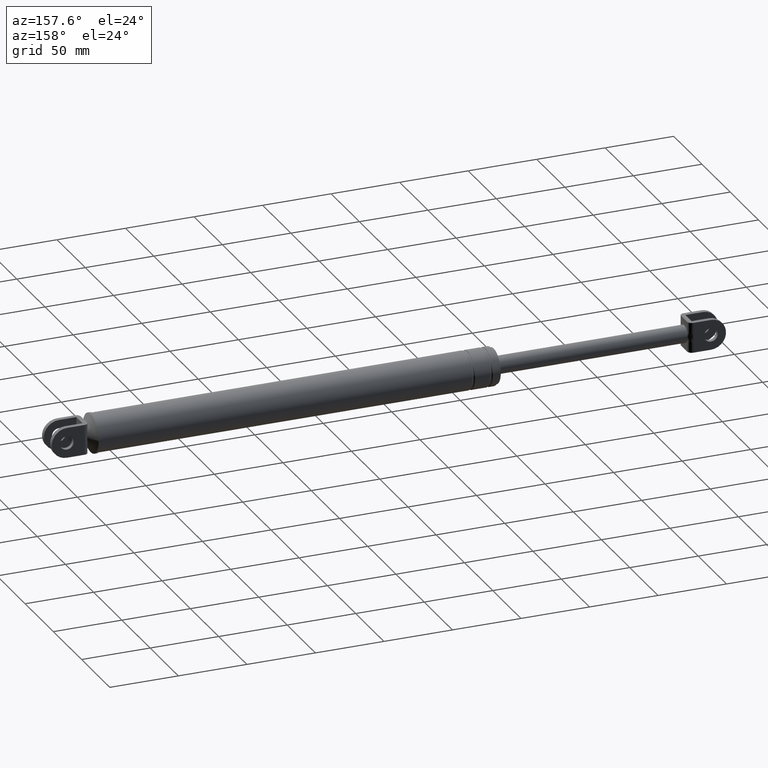
[diagram: clean part render]
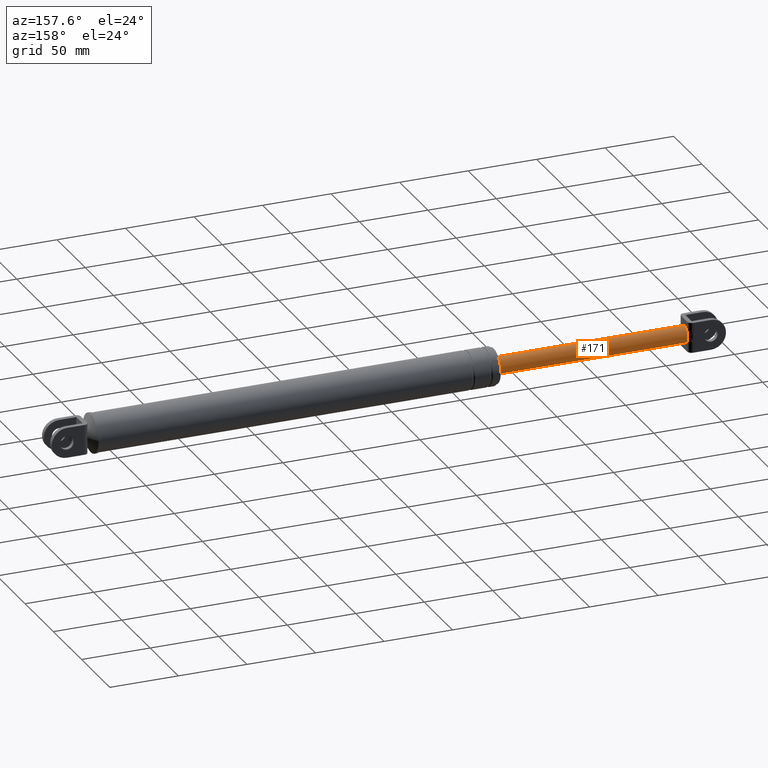
[diagram: same view with one face highlighted and labeled with its STEP entity id]
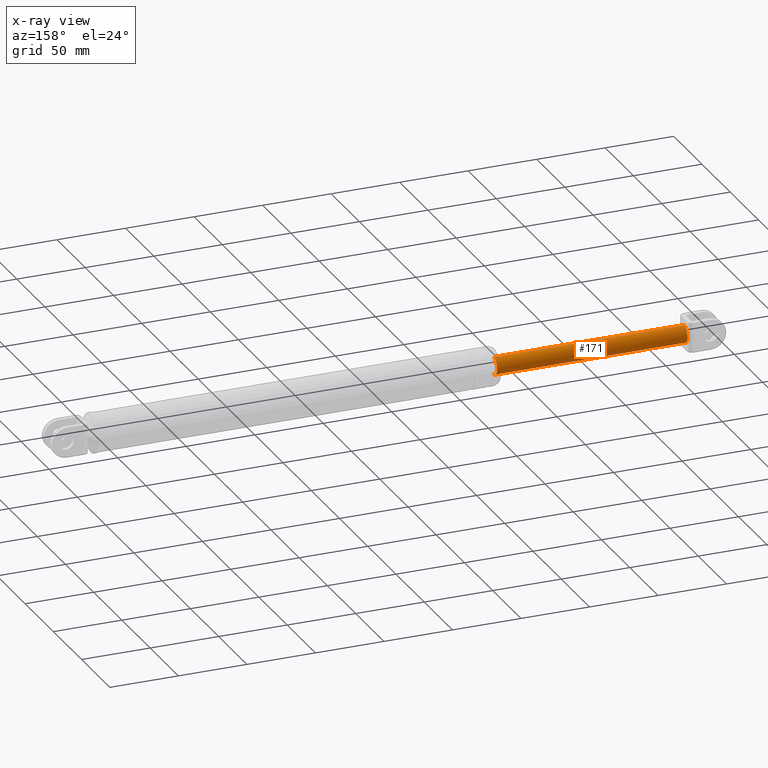
[diagram: x-ray of the same camera — body ghosted, the highlighted face saturated]
A machine part, auxiliary view. The second image highlights one B-rep face of the part: STEP entity #171.
The next image is the same camera in x-ray: the body ghosted, the highlighted face saturated — about 0% of this face is hidden behind the body in this view.
In plain terms, the highlighted cylindrical surface (edge-blend (fillet) strip) has radius 6.25 mm, axis along (-1, -0, -0).
Its self-contained STEP definition (entity closure, byte-faithful):
#171=ADVANCED_FACE('',(#777),#776,.T.);
#776=CYLINDRICAL_SURFACE('',#1947,6.25000000000E+000);
#777=FACE_OUTER_BOUND('',#1948,.T.);
#1944=CARTESIAN_POINT('',(-2.33161286771E+001,9.01953039248E-014,1.88612980532E+002));
#1945=DIRECTION('',(-1.00000000000E+000,-0.00000000000E+000,-0.00000000000E+000));
#1946=DIRECTION('',(0.00000000000E+000,5.27486867393E-014,-1.00000000000E+000));
#1947=AXIS2_PLACEMENT_3D('',#1944,#1945,#1946);
#1948=EDGE_LOOP('',(#2263,#2264,#2265,#2266,#2267,#2268));
#2263=ORIENTED_EDGE('',*,*,#2436,.F.);
#2264=ORIENTED_EDGE('',*,*,#2437,.T.);
#2265=ORIENTED_EDGE('',*,*,#2428,.F.);
#2266=ORIENTED_EDGE('',*,*,#2397,.F.);
#2267=ORIENTED_EDGE('',*,*,#2424,.F.);
#2268=ORIENTED_EDGE('',*,*,#2438,.F.);
#2397=EDGE_CURVE('',#3155,#3175,#3189,.T.);
#2424=EDGE_CURVE('',#3363,#3155,#3370,.T.);
#2428=EDGE_CURVE('',#3175,#3396,#3397,.T.);
#2436=EDGE_CURVE('',#3442,#3441,#3449,.T.);
#2437=EDGE_CURVE('',#3442,#3396,#3455,.T.);
#2438=EDGE_CURVE('',#3441,#3363,#3461,.T.);
#3155=VERTEX_POINT('',#3953);
#3175=VERTEX_POINT('',#3965);
#3189=CIRCLE('',#3984,6.25000000000E+000);
#3363=VERTEX_POINT('',#4085);
#3370=CIRCLE('',#4093,6.25000000000E+000);
#3396=VERTEX_POINT('',#4108);
#3397=CIRCLE('',#4112,6.25000000000E+000);
#3441=VERTEX_POINT('',#4137);
#3442=VERTEX_POINT('',#4138);
#3449=CIRCLE('',#4146,6.25000000000E+000);
#3455=(BOUNDED_CURVE() B_SPLINE_CURVE(1,(#4147,#4148),.UNSPECIFIED.,.F.,.F.) B_SPLINE_CURVE_WITH_KNOTS((2,2),(6.28930816424E-002,9.37106918113E-001),.UNSPECIFIED.) CURVE() GEOMETRIC_REPRESENTATION_ITEM() RATIONAL_B_SPLINE_CURVE((1.00000000000E+000,1.00000000000E+000)) REPRESENTATION_ITEM('') );
#3461=(BOUNDED_CURVE() B_SPLINE_CURVE(1,(#4149,#4150),.UNSPECIFIED.,.F.,.F.) B_SPLINE_CURVE_WITH_KNOTS((2,2),(6.28930817610E-002,9.37106918239E-001),.UNSPECIFIED.) CURVE() GEOMETRIC_REPRESENTATION_ITEM() RATIONAL_B_SPLINE_CURVE((7.50000000000E-001,7.50000000000E-001)) REPRESENTATION_ITEM('') );
#3953=CARTESIAN_POINT('',(-1.33161286771E+001,5.49999700000E+000,1.91581571612E+002));
#3965=CARTESIAN_POINT('',(-1.33161286771E+001,5.49999700000E+000,1.85644389452E+002));
#3981=CARTESIAN_POINT('',(-1.33161286771E+001,-1.32338584535E-012,1.88612980532E+002));
#3982=DIRECTION('',(-1.00000000000E+000,-1.89288489310E-015,-6.81682518045E-016));
#3983=DIRECTION('',(1.98951966013E-015,-8.79999520000E-001,-4.74974572793E-001));
#3984=AXIS2_PLACEMENT_3D('',#3981,#3982,#3983);
#4085=CARTESIAN_POINT('',(-1.33161286771E+001,7.57709684851E-007,1.94862980532E+002));
#4090=CARTESIAN_POINT('',(-1.33161286771E+001,-2.25597318604E-013,1.88612980532E+002));
#4091=DIRECTION('',(-1.00000000000E+000,1.53360026379E-015,-7.48956028802E-016));
#4092=DIRECTION('',(1.70530256582E-015,8.79999520000E-001,-4.74974572793E-001));
#4093=AXIS2_PLACEMENT_3D('',#4090,#4091,#4092);
#4108=CARTESIAN_POINT('',(-1.33161286771E+001,-3.85307595801E-012,1.82362980532E+002));
#4109=CARTESIAN_POINT('',(-1.33161286771E+001,8.10906897186E-013,1.88612980532E+002));
#4110=DIRECTION('',(-1.00000000000E+000,6.58696557818E-017,1.22038670680E-016));
#4111=DIRECTION('',(-0.00000000000E+000,-8.79999520000E-001,4.74974572793E-001));
#4112=AXIS2_PLACEMENT_3D('',#4109,#4110,#4111);
#4137=CARTESIAN_POINT('',(1.25683871323E+002,9.01953039248E-014,1.94862980532E+002));
#4138=CARTESIAN_POINT('',(1.25683871323E+002,9.14823772291E-014,1.82362980532E+002));
#4143=CARTESIAN_POINT('',(1.25683871323E+002,9.01953039248E-014,1.88612980532E+002));
#4144=DIRECTION('',(1.00000000000E+000,0.00000000000E+000,-0.00000000000E+000));
#4145=DIRECTION('',(0.00000000000E+000,-1.22460635382E-016,1.00000000000E+000));
#4146=AXIS2_PLACEMENT_3D('',#4143,#4144,#4145);
#4147=CARTESIAN_POINT('',(1.25683871342E+002,4.19874596045E-013,1.82362980532E+002));
#4148=CARTESIAN_POINT('',(-1.33161286571E+001,4.19874596045E-013,1.82362980532E+002));
#4149=CARTESIAN_POINT('',(1.25683871323E+002,-2.39512113846E-013,1.94862980532E+002));
#4150=CARTESIAN_POINT('',(-1.33161286771E+001,-2.39512113846E-013,1.94862980532E+002));